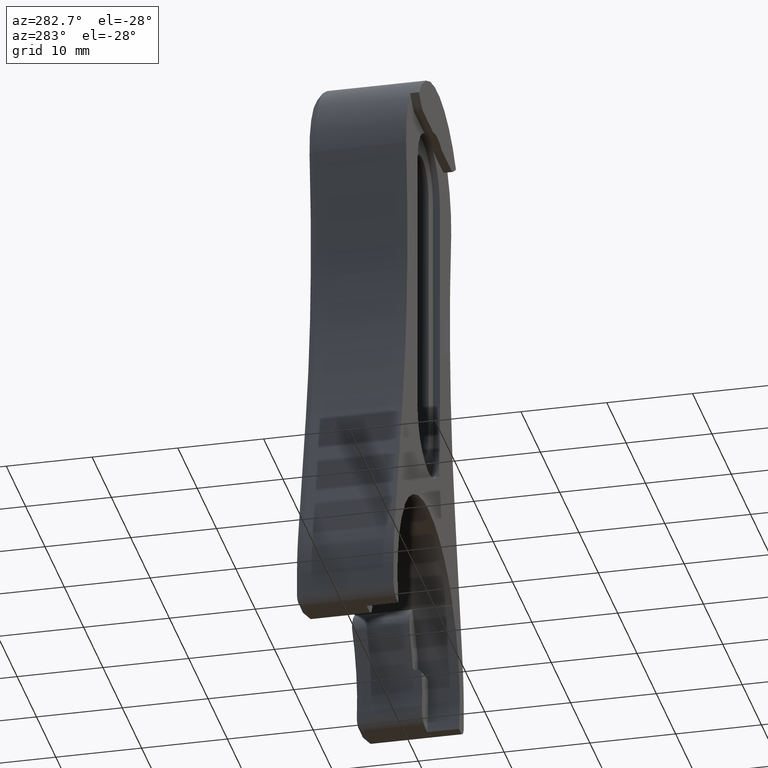
[diagram: clean part render]
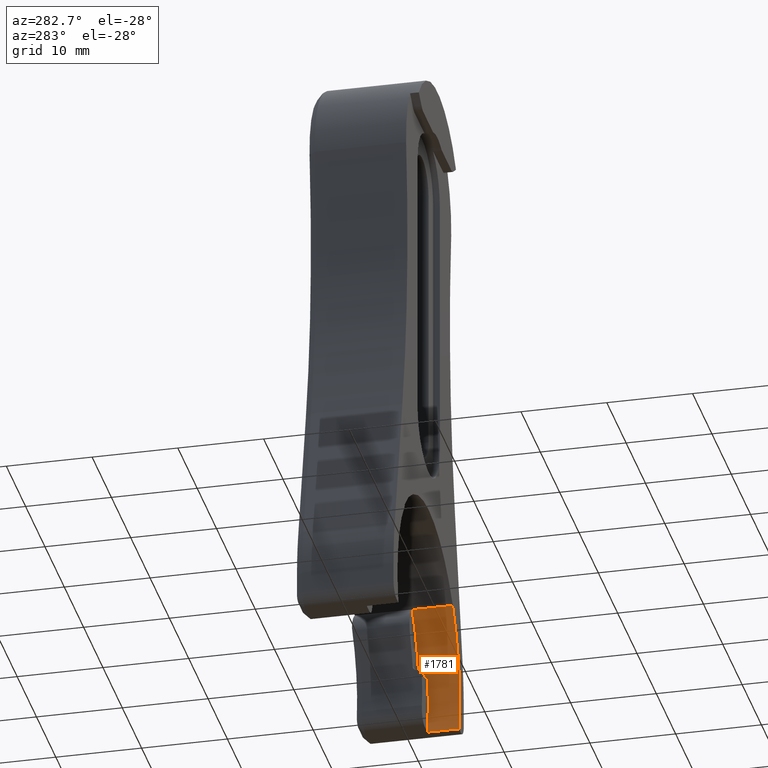
[diagram: same view with one face highlighted and labeled with its STEP entity id]
A machine part, auxiliary view. The second image highlights one B-rep face of the part: STEP entity #1781.
In plain terms, the highlighted cylindrical surface (partial cylindrical patch) has radius 16.129 mm, axis along (0, -1, 0).
Its self-contained STEP definition (entity closure, byte-faithful):
#56 = VERTEX_POINT ( 'NONE', #844 ) ;
#138 = EDGE_CURVE ( 'NONE', #3587, #4080, #1413, .T. ) ;
#155 = AXIS2_PLACEMENT_3D ( 'NONE', #2880, #458, #2533 ) ;
#458 = DIRECTION ( 'NONE',  ( 0.0000000000000000000, 1.000000000000000000, -0.0000000000000000000 ) ) ;
#504 = VERTEX_POINT ( 'NONE', #770 ) ;
#526 = CARTESIAN_POINT ( 'NONE',  ( 0.6170291727301068200, -0.2249999999999999800, -0.1500000000000000500 ) ) ;
#636 = EDGE_CURVE ( 'NONE', #2513, #794, #693, .T. ) ;
#693 = LINE ( 'NONE', #2125, #4213 ) ;
#770 = CARTESIAN_POINT ( 'NONE',  ( 0.6211237264659677000, -0.05999999999999998400, 0.1320239236692727600 ) ) ;
#794 = VERTEX_POINT ( 'NONE', #526 ) ;
#799 = CARTESIAN_POINT ( 'NONE',  ( 0.6166573382237168200, -0.03999999999999998000, 0.1515213754387170800 ) ) ;
#844 = CARTESIAN_POINT ( 'NONE',  ( 0.6249738058564268100, -0.08000000000000000200, 0.1123954714093647700 ) ) ;
#855 = ORIENTED_EDGE ( 'NONE', *, *, #3810, .T. ) ;
#856 = CARTESIAN_POINT ( 'NONE',  ( 0.6211237264659677000, -0.06528269751615944900, 0.1320239236692727400 ) ) ;
#920 = ORIENTED_EDGE ( 'NONE', *, *, #636, .T. ) ;
#941 = VERTEX_POINT ( 'NONE', #3608 ) ;
#966 = EDGE_CURVE ( 'NONE', #941, #794, #3333, .T. ) ;
#1029 = CARTESIAN_POINT ( 'NONE',  ( 0.6179178691429051400, -0.03999999999999998000, 0.1463913029382228900 ) ) ;
#1074 = FACE_OUTER_BOUND ( 'NONE', #2626, .T. ) ;
#1217 = CARTESIAN_POINT ( 'NONE',  ( 1.810957896106150000E-017, -0.2249999999999999800, -6.829619984160658000E-017 ) ) ;
#1328 = DIRECTION ( 'NONE',  ( 0.0000000000000000000, 1.000000000000000000, 0.0000000000000000000 ) ) ;
#1413 = CIRCLE ( 'NONE', #155, 0.6350000000000002300 ) ;
#1450 = DIRECTION ( 'NONE',  ( 0.0000000000000000000, 0.0000000000000000000, -1.000000000000000000 ) ) ;
#1559 = CYLINDRICAL_SURFACE ( 'NONE', #1759, 0.6350000000000002300 ) ;
#1570 = DIRECTION ( 'NONE',  ( 0.0000000000000000000, 0.0000000000000000000, 1.000000000000000000 ) ) ;
#1684 = EDGE_CURVE ( 'NONE', #504, #56, #4228, .T. ) ;
#1731 = CARTESIAN_POINT ( 'NONE',  ( 0.6190774751053319500, -0.04216472407524513700, 0.1413566361741049600 ) ) ;
#1759 = AXIS2_PLACEMENT_3D ( 'NONE', #2128, #1778, #1450 ) ;
#1778 = DIRECTION ( 'NONE',  ( 0.0000000000000000000, -1.000000000000000000, 0.0000000000000000000 ) ) ;
#1781 = ADVANCED_FACE ( 'NONE', ( #1074 ), #1559, .F. ) ;
#1923 = CARTESIAN_POINT ( 'NONE',  ( 0.6230478539018806700, -0.07782777688500648600, 0.1226783229909624600 ) ) ;
#1932 = ORIENTED_EDGE ( 'NONE', *, *, #2600, .T. ) ;
#2033 = ORIENTED_EDGE ( 'NONE', *, *, #966, .F. ) ;
#2078 = CARTESIAN_POINT ( 'NONE',  ( 0.6211237264659679200, -0.05471730711042976200, 0.1320239236692727600 ) ) ;
#2125 = CARTESIAN_POINT ( 'NONE',  ( 0.6170291727301068200, -0.08000000000000000200, -0.1500000000000000500 ) ) ;
#2128 = CARTESIAN_POINT ( 'NONE',  ( 1.810957896106150000E-017, -0.03999999999999998000, -6.829619984160658000E-017 ) ) ;
#2207 = B_SPLINE_CURVE_WITH_KNOTS ( 'NONE', 3,
 ( #3413, #1029, #1731, #4086, #2078, #4424 ),
 .UNSPECIFIED., .F., .F.,
 ( 4, 2, 4 ),
 ( 0.0000000000000000000, 0.0003968286477033256600, 0.0007936572954066513100 ),
 .UNSPECIFIED. ) ;
#2251 = CARTESIAN_POINT ( 'NONE',  ( 0.6249738058564268100, -0.08000000000000000200, 0.1123954714093647700 ) ) ;
#2320 = ORIENTED_EDGE ( 'NONE', *, *, #3049, .T. ) ;
#2369 = ORIENTED_EDGE ( 'NONE', *, *, #138, .T. ) ;
#2431 = DIRECTION ( 'NONE',  ( -0.0000000000000000000, 1.000000000000000000, -0.0000000000000000000 ) ) ;
#2436 = VECTOR ( 'NONE', #2431, 39.37007874015748100 ) ;
#2513 = VERTEX_POINT ( 'NONE', #3374 ) ;
#2533 = DIRECTION ( 'NONE',  ( 0.0000000000000000000, 0.0000000000000000000, 1.000000000000000000 ) ) ;
#2600 = EDGE_CURVE ( 'NONE', #941, #3587, #3320, .T. ) ;
#2626 = EDGE_LOOP ( 'NONE', ( #2369, #855, #2843, #2320, #920, #2033, #1932 ) ) ;
#2777 = CARTESIAN_POINT ( 'NONE',  ( 0.4864382213805507600, -0.03999999999999998000, 0.4081701321509532100 ) ) ;
#2843 = ORIENTED_EDGE ( 'NONE', *, *, #1684, .T. ) ;
#2880 = CARTESIAN_POINT ( 'NONE',  ( 1.810957896106150000E-017, -0.03999999999999998000, -6.829619984160658000E-017 ) ) ;
#2939 = CIRCLE ( 'NONE', #4317, 0.6350000000000000100 ) ;
#3049 = EDGE_CURVE ( 'NONE', #56, #2513, #2939, .T. ) ;
#3083 = CARTESIAN_POINT ( 'NONE',  ( 0.4864382213805507600, -0.03999999999999998000, 0.4081701321509532100 ) ) ;
#3117 = DIRECTION ( 'NONE',  ( 0.0000000000000000000, -1.000000000000000000, 0.0000000000000000000 ) ) ;
#3257 = CARTESIAN_POINT ( 'NONE',  ( 0.6211237264659677000, -0.05999999999999998400, 0.1320239236692727600 ) ) ;
#3320 = LINE ( 'NONE', #3083, #2436 ) ;
#3333 = CIRCLE ( 'NONE', #3382, 0.6350000000000002300 ) ;
#3365 = CARTESIAN_POINT ( 'NONE',  ( 0.0000000000000000000, -0.08000000000000000200, 0.0000000000000000000 ) ) ;
#3374 = CARTESIAN_POINT ( 'NONE',  ( 0.6170291727301068200, -0.08000000000000000200, -0.1500000000000000500 ) ) ;
#3382 = AXIS2_PLACEMENT_3D ( 'NONE', #1217, #3589, #1570 ) ;
#3413 = CARTESIAN_POINT ( 'NONE',  ( 0.6166573382237168200, -0.03999999999999998000, 0.1515213754387170800 ) ) ;
#3587 = VERTEX_POINT ( 'NONE', #2777 ) ;
#3589 = DIRECTION ( 'NONE',  ( 0.0000000000000000000, 1.000000000000000000, -0.0000000000000000000 ) ) ;
#3608 = CARTESIAN_POINT ( 'NONE',  ( 0.4864382213805507600, -0.2249999999999999800, 0.4081701321509532100 ) ) ;
#3710 = DIRECTION ( 'NONE',  ( 0.0000000000000000000, 0.0000000000000000000, 1.000000000000000000 ) ) ;
#3810 = EDGE_CURVE ( 'NONE', #4080, #504, #2207, .T. ) ;
#3924 = CARTESIAN_POINT ( 'NONE',  ( 0.6215809901827461500, -0.07044851351318372200, 0.1299063964054540700 ) ) ;
#4080 = VERTEX_POINT ( 'NONE', #799 ) ;
#4086 = CARTESIAN_POINT ( 'NONE',  ( 0.6206786175747341900, -0.04953872861605755600, 0.1341516770628227200 ) ) ;
#4213 = VECTOR ( 'NONE', #3117, 39.37007874015748100 ) ;
#4228 = B_SPLINE_CURVE_WITH_KNOTS ( 'NONE', 3,
 ( #3257, #856, #3924, #1923, #4252, #2251 ),
 .UNSPECIFIED., .F., .F.,
 ( 4, 2, 4 ),
 ( 4.336808689942017700E-019, 0.0003968281627676725000, 0.0007936563255353445600 ),
 .UNSPECIFIED. ) ;
#4252 = CARTESIAN_POINT ( 'NONE',  ( 0.6240387660197589400, -0.08000000000000001600, 0.1175947503306787200 ) ) ;
#4317 = AXIS2_PLACEMENT_3D ( 'NONE', #3365, #1328, #3710 ) ;
#4424 = CARTESIAN_POINT ( 'NONE',  ( 0.6211237264659677000, -0.05999999999999998400, 0.1320239236692727600 ) ) ;